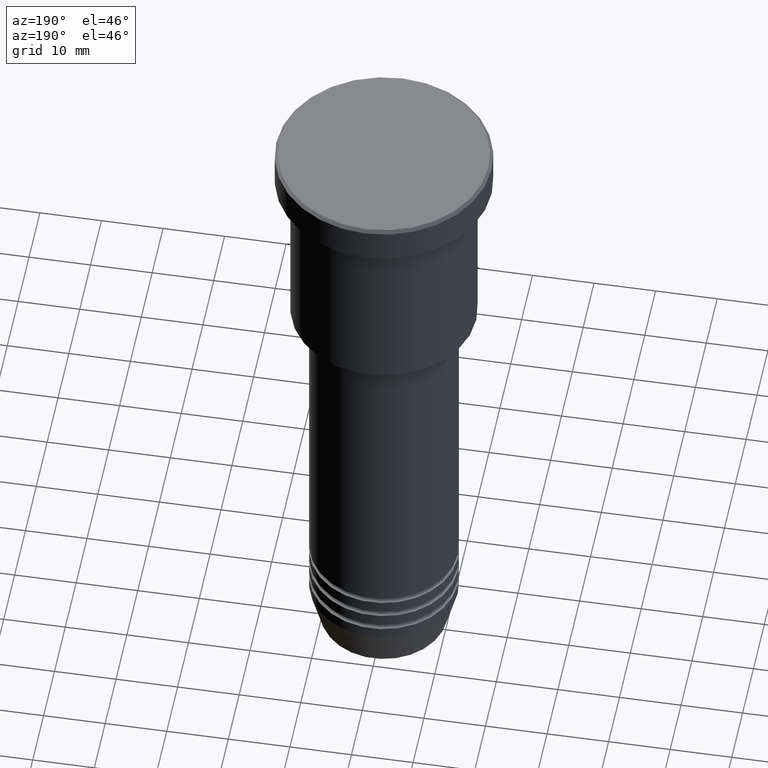
[diagram: clean part render]
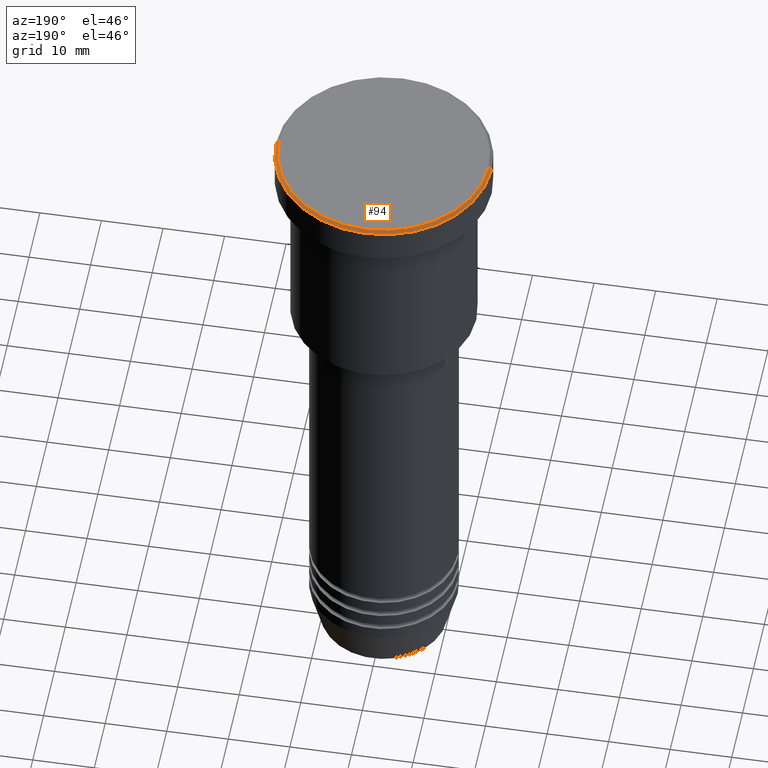
[diagram: same view with one face highlighted and labeled with its STEP entity id]
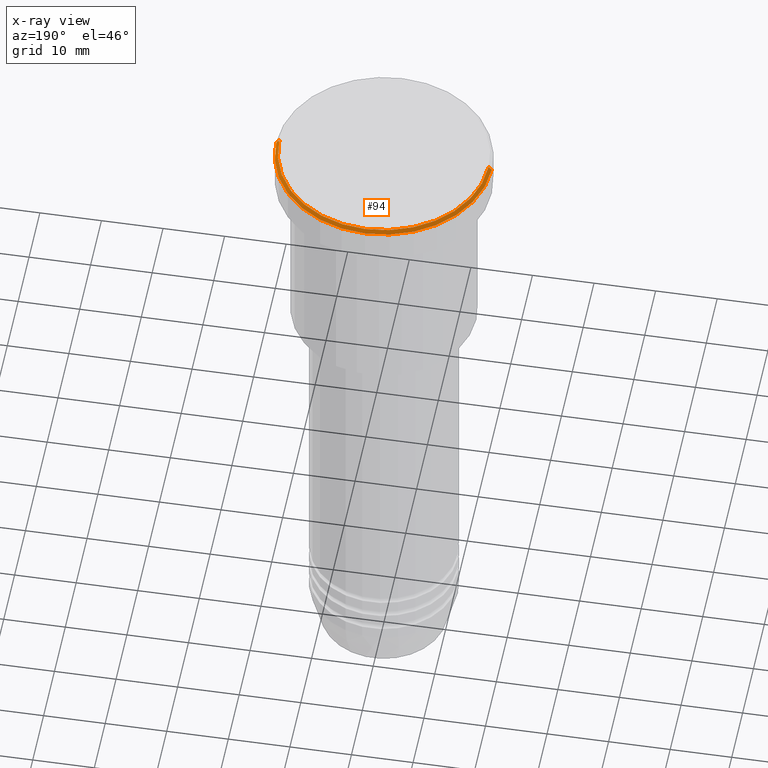
[diagram: x-ray of the same camera — body ghosted, the highlighted face saturated]
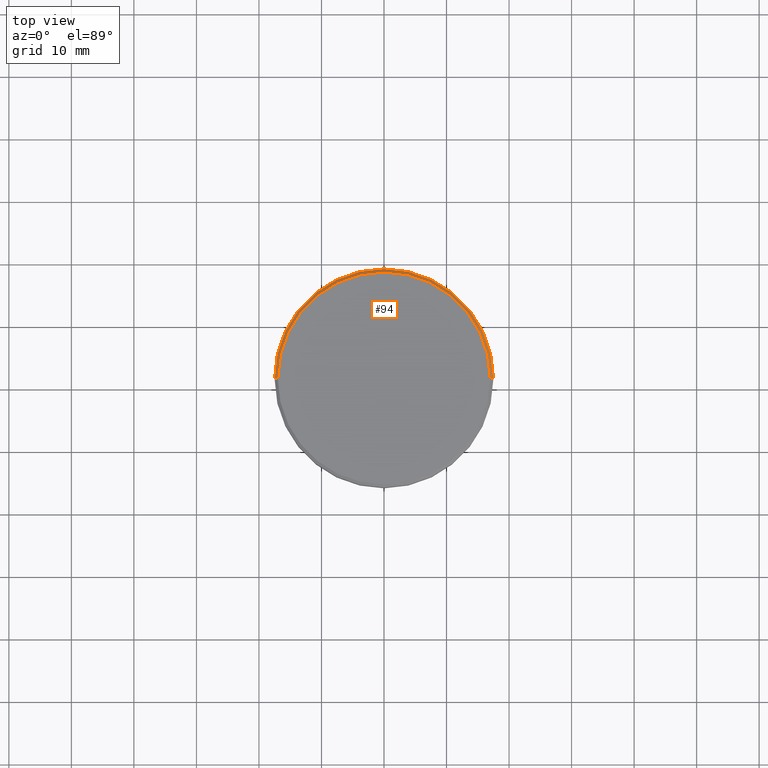
[diagram: same view with one face highlighted and labeled with its STEP entity id]
A machine part, auxiliary view. The second image highlights one B-rep face of the part: STEP entity #94.
The next image is the same camera in x-ray: the body ghosted, the highlighted face saturated — about 0% of this face is hidden behind the body in this view.
A second angle (top view) of the same face is appended — the face is thin or edge-on in the first view.
In plain terms, the highlighted conical surface has half-angle 45 deg.
Its self-contained STEP definition (entity closure, byte-faithful):
#14 = CARTESIAN_POINT ( 'NONE',  ( -17.50000000000000000, 2.143131898507868248E-15, -0.5000000000000280886 ) ) ;
#44 = DIRECTION ( 'NONE',  ( -0.000000000000000000, -0.000000000000000000, 1.000000000000000000 ) ) ;
#94 = ADVANCED_FACE ( 'NONE', ( #1158 ), #1128, .T. ) ;
#104 = LINE ( 'NONE', #206, #908 ) ;
#110 = VERTEX_POINT ( 'NONE', #14 ) ;
#206 = CARTESIAN_POINT ( 'NONE',  ( 16.99999999999998579, 2.081899558550499096E-15, 0.000000000000000000 ) ) ;
#209 = EDGE_LOOP ( 'NONE', ( #242, #244, #1152, #823 ) ) ;
#210 = DIRECTION ( 'NONE',  ( 0.000000000000000000, 0.000000000000000000, -1.000000000000000000 ) ) ;
#233 = AXIS2_PLACEMENT_3D ( 'NONE', #915, #615, #516 ) ;
#242 = ORIENTED_EDGE ( 'NONE', *, *, #866, .F. ) ;
#243 = DIRECTION ( 'NONE',  ( -0.7071067811865378028, 0.000000000000000000, -0.7071067811865573427 ) ) ;
#244 = ORIENTED_EDGE ( 'NONE', *, *, #1031, .T. ) ;
#250 = VERTEX_POINT ( 'NONE', #868 ) ;
#302 = VERTEX_POINT ( 'NONE', #705 ) ;
#313 = DIRECTION ( 'NONE',  ( 1.000000000000000000, 0.000000000000000000, 0.000000000000000000 ) ) ;
#356 = EDGE_CURVE ( 'NONE', #1124, #110, #429, .T. ) ;
#397 = DIRECTION ( 'NONE',  ( 0.7071067811865378028, 8.659560562354814529E-17, -0.7071067811865573427 ) ) ;
#429 = LINE ( 'NONE', #893, #775 ) ;
#516 = DIRECTION ( 'NONE',  ( -1.000000000000000000, 0.000000000000000000, 0.000000000000000000 ) ) ;
#604 = EDGE_CURVE ( 'NONE', #110, #250, #715, .T. ) ;
#615 = DIRECTION ( 'NONE',  ( 0.000000000000000000, 0.000000000000000000, -1.000000000000000000 ) ) ;
#634 = DIRECTION ( 'NONE',  ( 1.000000000000000000, 0.000000000000000000, 0.000000000000000000 ) ) ;
#658 = CARTESIAN_POINT ( 'NONE',  ( -16.99999999999998579, 0.000000000000000000, 0.000000000000000000 ) ) ;
#670 = CIRCLE ( 'NONE', #832, 16.99999999999998579 ) ;
#705 = CARTESIAN_POINT ( 'NONE',  ( 16.99999999999998579, 2.112515728529183278E-15, 0.000000000000000000 ) ) ;
#715 = CIRCLE ( 'NONE', #776, 17.50000000000000000 ) ;
#775 = VECTOR ( 'NONE', #243, 1000.000000000000000 ) ;
#776 = AXIS2_PLACEMENT_3D ( 'NONE', #1025, #210, #634 ) ;
#823 = ORIENTED_EDGE ( 'NONE', *, *, #356, .F. ) ;
#832 = AXIS2_PLACEMENT_3D ( 'NONE', #856, #44, #313 ) ;
#856 = CARTESIAN_POINT ( 'NONE',  ( 0.000000000000000000, 0.000000000000000000, 0.000000000000000000 ) ) ;
#866 = EDGE_CURVE ( 'NONE', #302, #1124, #670, .T. ) ;
#868 = CARTESIAN_POINT ( 'NONE',  ( 17.50000000000000000, 0.000000000000000000, -0.5000000000000280886 ) ) ;
#893 = CARTESIAN_POINT ( 'NONE',  ( -16.99999999999998579, 0.000000000000000000, 0.000000000000000000 ) ) ;
#908 = VECTOR ( 'NONE', #397, 1000.000000000000000 ) ;
#915 = CARTESIAN_POINT ( 'NONE',  ( 0.000000000000000000, 0.000000000000000000, 0.000000000000000000 ) ) ;
#1025 = CARTESIAN_POINT ( 'NONE',  ( 0.000000000000000000, 0.000000000000000000, -0.5000000000000280886 ) ) ;
#1031 = EDGE_CURVE ( 'NONE', #302, #250, #104, .T. ) ;
#1124 = VERTEX_POINT ( 'NONE', #658 ) ;
#1128 = CONICAL_SURFACE ( 'NONE', #233, 16.99999999999998579, 0.7853981633974346233 ) ;
#1152 = ORIENTED_EDGE ( 'NONE', *, *, #604, .F. ) ;
#1158 = FACE_OUTER_BOUND ( 'NONE', #209, .T. ) ;